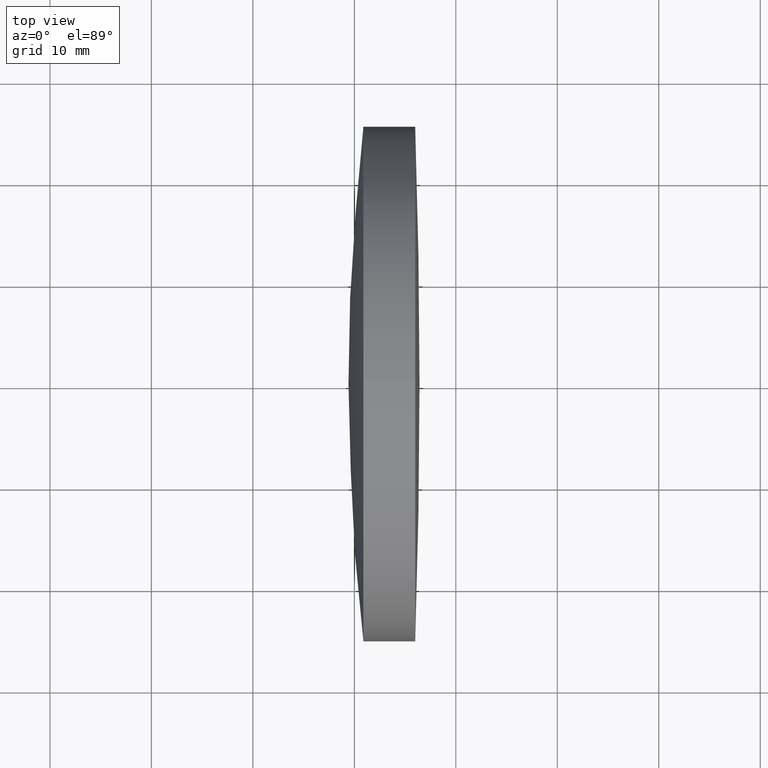
[diagram: clean part render]
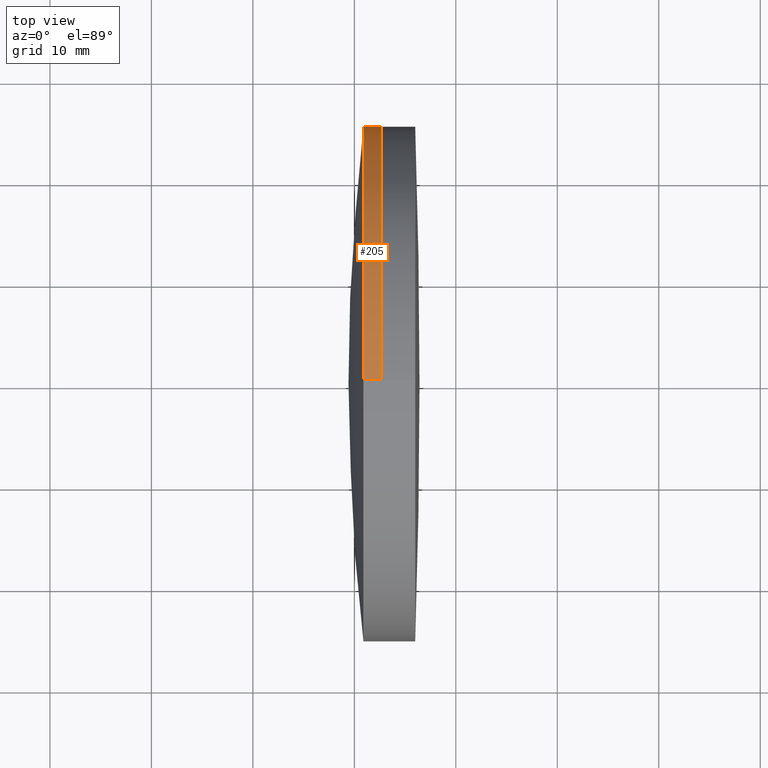
[diagram: same view with one face highlighted and labeled with its STEP entity id]
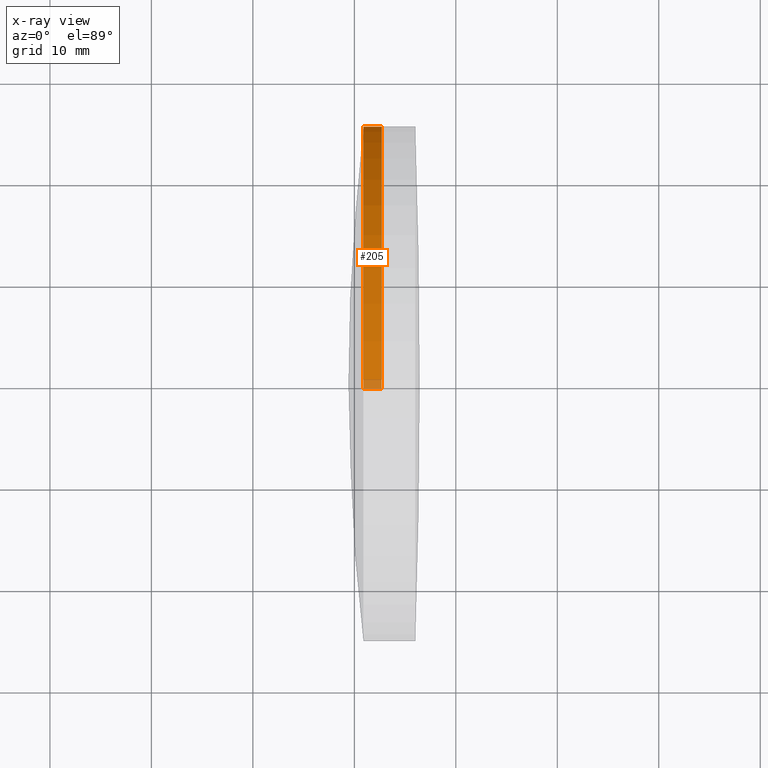
[diagram: x-ray of the same camera — body ghosted, the highlighted face saturated]
A machine part, top view. The second image highlights one B-rep face of the part: STEP entity #205.
The next image is the same camera in x-ray: the body ghosted, the highlighted face saturated — about 3% of this face is hidden behind the body in this view.
In plain terms, the highlighted cylindrical surface (partial cylindrical patch) has radius 25.4 mm, axis along (-1, -0, -0).
Its self-contained STEP definition (entity closure, byte-faithful):
#8 = DIRECTION ( 'NONE',  ( 0.0000000000000000000, 0.0000000000000000000, 1.000000000000000000 ) ) ;
#34 = EDGE_LOOP ( 'NONE', ( #267, #41, #261, #99 ) ) ;
#41 = ORIENTED_EDGE ( 'NONE', *, *, #121, .T. ) ;
#59 = CARTESIAN_POINT ( 'NONE',  ( 440.8943219622805100, 0.0000000000000000000, 0.0000000000000000000 ) ) ;
#63 = VERTEX_POINT ( 'NONE', #176 ) ;
#72 = VECTOR ( 'NONE', #244, 1000.000000000000000 ) ;
#99 = ORIENTED_EDGE ( 'NONE', *, *, #272, .F. ) ;
#106 = DIRECTION ( 'NONE',  ( -1.000000000000000000, -0.0000000000000000000, -0.0000000000000000000 ) ) ;
#114 = VERTEX_POINT ( 'NONE', #159 ) ;
#116 = VERTEX_POINT ( 'NONE', #127 ) ;
#121 = EDGE_CURVE ( 'NONE', #116, #325, #126, .T. ) ;
#126 = LINE ( 'NONE', #323, #72 ) ;
#127 = CARTESIAN_POINT ( 'NONE',  ( 442.6868520807731200, 3.110602869834276900E-015, -25.39999999999999900 ) ) ;
#131 = CYLINDRICAL_SURFACE ( 'NONE', #217, 25.39999999999999100 ) ;
#140 = DIRECTION ( 'NONE',  ( -1.000000000000000000, -0.0000000000000000000, -0.0000000000000000000 ) ) ;
#141 = AXIS2_PLACEMENT_3D ( 'NONE', #59, #140, #274 ) ;
#158 = CIRCLE ( 'NONE', #314, 25.39999999999999500 ) ;
#159 = CARTESIAN_POINT ( 'NONE',  ( 440.8943219622805100, 0.0000000000000000000, 25.39999999999991700 ) ) ;
#166 = VECTOR ( 'NONE', #221, 1000.000000000000000 ) ;
#176 = CARTESIAN_POINT ( 'NONE',  ( 442.6868520807731200, 0.0000000000000000000, 25.39999999999999500 ) ) ;
#189 = DIRECTION ( 'NONE',  ( -1.000000000000000000, -0.0000000000000000000, -0.0000000000000000000 ) ) ;
#205 = ADVANCED_FACE ( 'NONE', ( #284 ), #131, .T. ) ;
#217 = AXIS2_PLACEMENT_3D ( 'NONE', #280, #189, #250 ) ;
#218 = CARTESIAN_POINT ( 'NONE',  ( 442.6868520807731200, 0.0000000000000000000, 0.0000000000000000000 ) ) ;
#221 = DIRECTION ( 'NONE',  ( -1.000000000000000000, -0.0000000000000000000, -0.0000000000000000000 ) ) ;
#222 = CARTESIAN_POINT ( 'NONE',  ( 124.5233095260452400, 0.0000000000000000000, 25.39999999999999100 ) ) ;
#225 = CARTESIAN_POINT ( 'NONE',  ( 440.8943219622805100, 3.110602869834267000E-015, -25.39999999999991700 ) ) ;
#229 = EDGE_CURVE ( 'NONE', #63, #116, #158, .T. ) ;
#244 = DIRECTION ( 'NONE',  ( -1.000000000000000000, -0.0000000000000000000, -0.0000000000000000000 ) ) ;
#250 = DIRECTION ( 'NONE',  ( 0.0000000000000000000, 0.0000000000000000000, 1.000000000000000000 ) ) ;
#261 = ORIENTED_EDGE ( 'NONE', *, *, #302, .F. ) ;
#267 = ORIENTED_EDGE ( 'NONE', *, *, #229, .T. ) ;
#272 = EDGE_CURVE ( 'NONE', #63, #114, #277, .T. ) ;
#274 = DIRECTION ( 'NONE',  ( 0.0000000000000000000, 0.0000000000000000000, 1.000000000000000000 ) ) ;
#277 = LINE ( 'NONE', #222, #166 ) ;
#280 = CARTESIAN_POINT ( 'NONE',  ( 124.5233095260452400, 0.0000000000000000000, 0.0000000000000000000 ) ) ;
#284 = FACE_OUTER_BOUND ( 'NONE', #34, .T. ) ;
#302 = EDGE_CURVE ( 'NONE', #114, #325, #321, .T. ) ;
#314 = AXIS2_PLACEMENT_3D ( 'NONE', #218, #106, #8 ) ;
#321 = CIRCLE ( 'NONE', #141, 25.39999999999999100 ) ;
#323 = CARTESIAN_POINT ( 'NONE',  ( 124.5233095260452400, 3.110602869834276100E-015, -25.39999999999999100 ) ) ;
#325 = VERTEX_POINT ( 'NONE', #225 ) ;